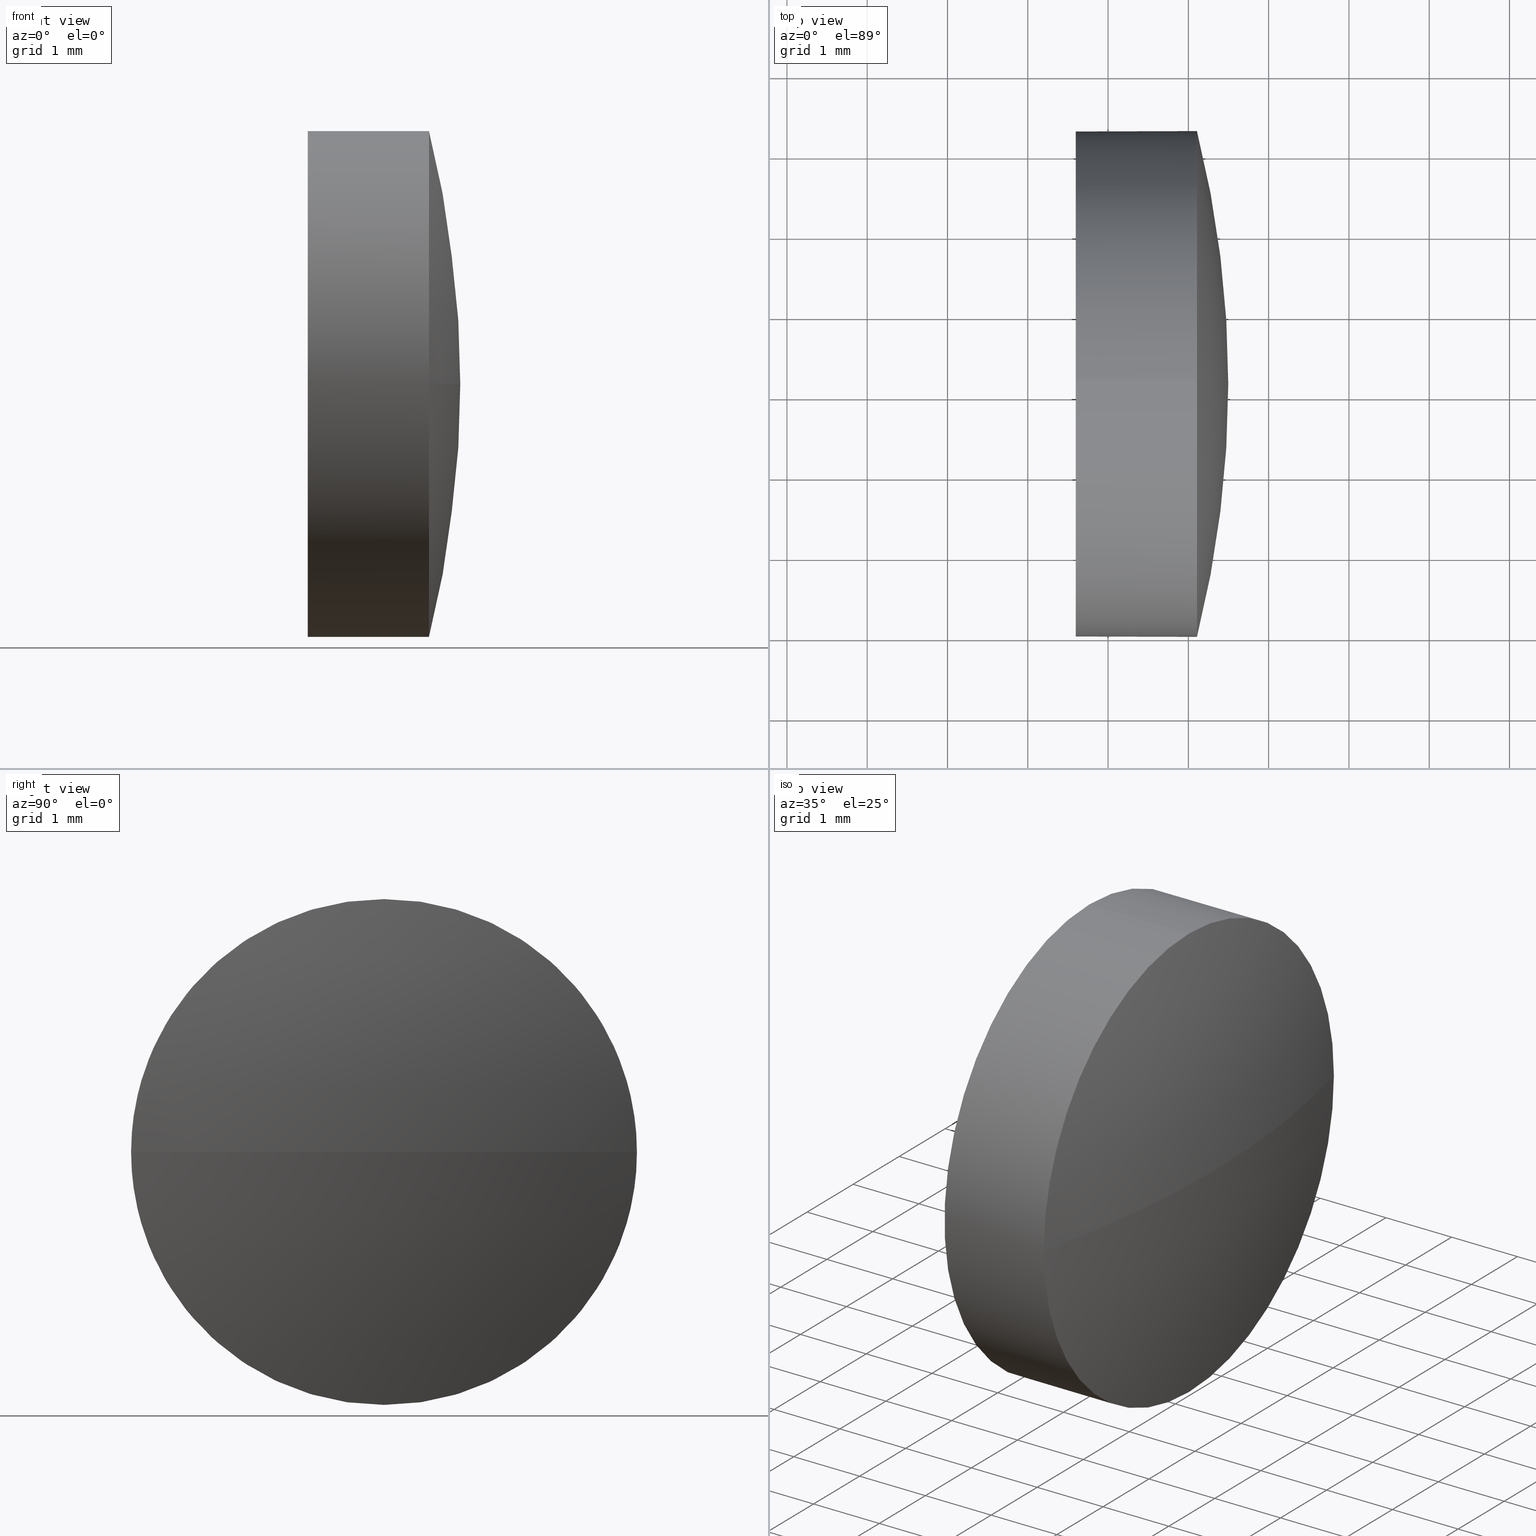
[diagram: canonical four-view strip — front | top / right | iso, engineering-drawing reading convention]
A machine part, canonical four-view strip (front | top / right | iso — engineering-drawing reading convention). The complete STEP part file that produces these views, byte-faithful:
ISO-10303-21;
HEADER;
FILE_DESCRIPTION (( 'STEP AP214' ),
    '1' );
FILE_NAME ('100011.STEP',
    '2019-04-19T06:27:19',
    ( '' ),
    ( '' ),
    'SwSTEP 2.0',
    'SolidWorks 2016',
    '' );
FILE_SCHEMA (( 'AUTOMOTIVE_DESIGN' ));
ENDSEC;

DATA;
#1 = CARTESIAN_POINT ( 'NONE',  ( 622.5808961781638100, 229.1405012617116500, 0.0000000000000000000 ) ) ;
#2 = ORIENTED_EDGE ( 'NONE', *, *, #12, .F. ) ;
#3 = DIRECTION ( 'NONE',  ( 0.0000000000000000000, 0.0000000000000000000, 1.000000000000000000 ) ) ;
#4 = DIRECTION ( 'NONE',  ( -0.0000000000000000000, 0.0000000000000000000, -1.000000000000000000 ) ) ;
#5 = CARTESIAN_POINT ( 'NONE',  ( 611.6004701883784900, 229.1405012617116200, 0.0000000000000000000 ) ) ;
#6 = DIRECTION ( 'NONE',  ( 0.0000000000000000000, 0.0000000000000000000, 1.000000000000000000 ) ) ;
#7 = ORIENTED_EDGE ( 'NONE', *, *, #12, .T. ) ;
#8 =( NAMED_UNIT ( * ) PLANE_ANGLE_UNIT ( ) SI_UNIT ( $, .RADIAN. ) );
#9 = ADVANCED_FACE ( 'NONE', ( #143 ), #26, .T. ) ;
#10 = CIRCLE ( 'NONE', #183, 3.149999999999986100 ) ;
#11 = ORIENTED_EDGE ( 'NONE', *, *, #166, .F. ) ;
#12 = EDGE_CURVE ( 'NONE', #146, #70, #60, .T. ) ;
#13 = PRODUCT_RELATED_PRODUCT_CATEGORY ( 'part', '', ( #117 ) ) ;
#14 =( LENGTH_UNIT ( ) NAMED_UNIT ( * ) SI_UNIT ( .MILLI., .METRE. ) );
#15 = PRODUCT_DEFINITION_CONTEXT ( 'detailed design', #158, 'design' ) ;
#16 = DIRECTION ( 'NONE',  ( 0.0000000000000000000, 0.0000000000000000000, 1.000000000000000000 ) ) ;
#17 = EDGE_CURVE ( 'NONE', #58, #70, #94, .T. ) ;
#18 = DIRECTION ( 'NONE',  ( -1.000000000000000000, -0.0000000000000000000, -0.0000000000000000000 ) ) ;
#19 = PRODUCT_DEFINITION_FORMATION_WITH_SPECIFIED_SOURCE ( '�κ�', '', #117, .NOT_KNOWN. ) ;
#20 = CARTESIAN_POINT ( 'NONE',  ( 635.1070500243175700, 229.1405012617116200, 0.0000000000000000000 ) ) ;
#21 = APPLICATION_PROTOCOL_DEFINITION ( 'draft international standard', 'automotive_design', 1998, #158 ) ;
#22 = SURFACE_STYLE_FILL_AREA ( #78 ) ;
#23 = UNCERTAINTY_MEASURE_WITH_UNIT (LENGTH_MEASURE( 1.000000000000000100E-005 ), #42, 'distance_accuracy_value', 'NONE');
#24 = LINE ( 'NONE', #41, #126 ) ;
#25 = AXIS2_PLACEMENT_3D ( 'NONE', #5, #90, #106 ) ;
#26 = SPHERICAL_SURFACE ( 'NONE', #99, 12.91615384615374000 ) ;
#27 = CLOSED_SHELL ( 'NONE', ( #169, #114, #9, #185, #127 ) ) ;
#28 = DIRECTION ( 'NONE',  ( 0.0000000000000000000, 0.0000000000000000000, 1.000000000000000000 ) ) ;
#29 = SURFACE_SIDE_STYLE ('',( #83 ) ) ;
#30 = PLANE ( 'NONE',  #54 ) ;
#31 = CARTESIAN_POINT ( 'NONE',  ( 622.5808961781638100, 229.1405012617116500, 0.0000000000000000000 ) ) ;
#32 = CARTESIAN_POINT ( 'NONE',  ( 633.5970500243175800, 229.1405012617116200, 0.0000000000000000000 ) ) ;
#33 = PRODUCT_DEFINITION ( 'δ֪', '', #19, #15 ) ;
#34 = STYLED_ITEM ( 'NONE', ( #165 ), #73 ) ;
#35 = EDGE_LOOP ( 'NONE', ( #129, #107, #52, #160, #7 ) ) ;
#36 =( GEOMETRIC_REPRESENTATION_CONTEXT ( 3 ) GLOBAL_UNCERTAINTY_ASSIGNED_CONTEXT ( ( #151 ) ) GLOBAL_UNIT_ASSIGNED_CONTEXT ( ( #14, #39, #137 ) ) REPRESENTATION_CONTEXT ( 'NONE', 'WORKASPACE' ) );
#37 = SURFACE_STYLE_USAGE ( .BOTH. , #29 ) ;
#38 = CARTESIAN_POINT ( 'NONE',  ( 635.1070500243175700, 229.1405012617116200, -3.149999999999986100 ) ) ;
#39 =( NAMED_UNIT ( * ) PLANE_ANGLE_UNIT ( ) SI_UNIT ( $, .RADIAN. ) );
#40 = EDGE_CURVE ( 'NONE', #104, #64, #92, .T. ) ;
#41 = CARTESIAN_POINT ( 'NONE',  ( 611.6004701883784900, 229.1405012617116200, 3.149999999999986100 ) ) ;
#42 =( LENGTH_UNIT ( ) NAMED_UNIT ( * ) SI_UNIT ( .MILLI., .METRE. ) );
#43 = DIRECTION ( 'NONE',  ( 0.0000000000000000000, 0.0000000000000000000, 1.000000000000000000 ) ) ;
#44 = ORIENTED_EDGE ( 'NONE', *, *, #81, .F. ) ;
#45 = CARTESIAN_POINT ( 'NONE',  ( 0.0000000000000000000, 0.0000000000000000000, 0.0000000000000000000 ) ) ;
#46 = VERTEX_POINT ( 'NONE', #174 ) ;
#47 = UNCERTAINTY_MEASURE_WITH_UNIT (LENGTH_MEASURE( 1.000000000000000100E-005 ), #125, 'distance_accuracy_value', 'NONE');
#48 = CARTESIAN_POINT ( 'NONE',  ( 633.5970500243175800, 229.1405012617116200, 0.0000000000000000000 ) ) ;
#49 = COLOUR_RGB ( '',1.000000000000000000, 1.000000000000000000, 1.000000000000000000 ) ;
#50 = CARTESIAN_POINT ( 'NONE',  ( 622.5808961781638100, 229.1405012617116500, 0.0000000000000000000 ) ) ;
#51 = CARTESIAN_POINT ( 'NONE',  ( 635.1070500243175700, 229.1405012617116200, 3.149999999999986100 ) ) ;
#52 = ORIENTED_EDGE ( 'NONE', *, *, #97, .F. ) ;
#53 = DIRECTION ( 'NONE',  ( 0.0000000000000000000, 1.224646799147353200E-016, -1.000000000000000000 ) ) ;
#54 = AXIS2_PLACEMENT_3D ( 'NONE', #48, #135, #156 ) ;
#55 = ORIENTED_EDGE ( 'NONE', *, *, #17, .F. ) ;
#56 = CYLINDRICAL_SURFACE ( 'NONE', #134, 3.149999999999986100 ) ;
#57 = EDGE_LOOP ( 'NONE', ( #98, #85 ) ) ;
#58 = VERTEX_POINT ( 'NONE', #62 ) ;
#59 = ORIENTED_EDGE ( 'NONE', *, *, #130, .F. ) ;
#60 = CIRCLE ( 'NONE', #91, 3.149999999999986100 ) ;
#61 = DIRECTION ( 'NONE',  ( 0.0000000000000000000, 1.000000000000000000, 0.0000000000000000000 ) ) ;
#62 = CARTESIAN_POINT ( 'NONE',  ( 635.4970500243175600, 229.1405012617116500, 0.0000000000000000000 ) ) ;
#63 = EDGE_CURVE ( 'NONE', #146, #182, #24, .T. ) ;
#64 = VERTEX_POINT ( 'NONE', #155 ) ;
#65 = APPLICATION_PROTOCOL_DEFINITION ( 'draft international standard', 'automotive_design', 1998, #93 ) ;
#66 = ORIENTED_EDGE ( 'NONE', *, *, #81, .T. ) ;
#67 = CYLINDRICAL_SURFACE ( 'NONE', #25, 3.149999999999986100 ) ;
#68 = EDGE_LOOP ( 'NONE', ( #55, #168, #139, #180 ) ) ;
#69 = EDGE_CURVE ( 'NONE', #70, #104, #184, .T. ) ;
#70 = VERTEX_POINT ( 'NONE', #131 ) ;
#71 = DIRECTION ( 'NONE',  ( -1.000000000000000000, -0.0000000000000000000, -0.0000000000000000000 ) ) ;
#72 = DIRECTION ( 'NONE',  ( -0.0000000000000000000, 0.0000000000000000000, 1.000000000000000000 ) ) ;
#73 = MANIFOLD_SOLID_BREP ( '��ת1', #27 ) ;
#74 = FACE_OUTER_BOUND ( 'NONE', #57, .T. ) ;
#75 = FILL_AREA_STYLE_COLOUR ( '', #49 ) ;
#76 = SURFACE_STYLE_USAGE ( .BOTH. , #161 ) ;
#77 = AXIS2_PLACEMENT_3D ( 'NONE', #32, #120, #119 ) ;
#78 = FILL_AREA_STYLE ('',( #75 ) ) ;
#79 = FACE_OUTER_BOUND ( 'NONE', #115, .T. ) ;
#80 =( NAMED_UNIT ( * ) SI_UNIT ( $, .STERADIAN. ) SOLID_ANGLE_UNIT ( ) );
#81 = EDGE_CURVE ( 'NONE', #46, #146, #111, .T. ) ;
#82 = ORIENTED_EDGE ( 'NONE', *, *, #162, .T. ) ;
#83 = SURFACE_STYLE_FILL_AREA ( #136 ) ;
#84 = AXIS2_PLACEMENT_3D ( 'NONE', #20, #108, #123 ) ;
#85 = ORIENTED_EDGE ( 'NONE', *, *, #130, .T. ) ;
#86 = CARTESIAN_POINT ( 'NONE',  ( 611.6004701883784900, 229.1405012617116200, -3.149999999999986100 ) ) ;
#87 = CARTESIAN_POINT ( 'NONE',  ( 635.1070500243175700, 229.1405012617116200, 0.0000000000000000000 ) ) ;
#88 = PRESENTATION_LAYER_ASSIGNMENT (  '', '', ( #164 ) ) ;
#89 = DIRECTION ( 'NONE',  ( 1.000000000000000000, 0.0000000000000000000, 0.0000000000000000000 ) ) ;
#90 = DIRECTION ( 'NONE',  ( -1.000000000000000000, -0.0000000000000000000, -0.0000000000000000000 ) ) ;
#91 = AXIS2_PLACEMENT_3D ( 'NONE', #87, #105, #3 ) ;
#92 = LINE ( 'NONE', #86, #177 ) ;
#93 = APPLICATION_CONTEXT ( 'automotive_design' ) ;
#94 = CIRCLE ( 'NONE', #148, 12.91615384615374400 ) ;
#95 = DIRECTION ( 'NONE',  ( 1.000000000000000000, 0.0000000000000000000, 0.0000000000000000000 ) ) ;
#96 = CARTESIAN_POINT ( 'NONE',  ( 622.5808961781638100, 229.1405012617116500, 0.0000000000000000000 ) ) ;
#97 = EDGE_CURVE ( 'NONE', #182, #64, #145, .T. ) ;
#98 = ORIENTED_EDGE ( 'NONE', *, *, #97, .T. ) ;
#99 = AXIS2_PLACEMENT_3D ( 'NONE', #1, #172, #171 ) ;
#100 = ADVANCED_BREP_SHAPE_REPRESENTATION ( '100011', ( #73, #144 ), #170 ) ;
#101 = DIRECTION ( 'NONE',  ( -1.000000000000000000, -0.0000000000000000000, -0.0000000000000000000 ) ) ;
#102 = COLOUR_RGB ( '',1.000000000000000000, 1.000000000000000000, 1.000000000000000000 ) ;
#103 = DIRECTION ( 'NONE',  ( -1.000000000000000000, -0.0000000000000000000, -0.0000000000000000000 ) ) ;
#104 = VERTEX_POINT ( 'NONE', #38 ) ;
#105 = DIRECTION ( 'NONE',  ( -1.000000000000000000, -0.0000000000000000000, -0.0000000000000000000 ) ) ;
#106 = DIRECTION ( 'NONE',  ( 0.0000000000000000000, 0.0000000000000000000, 1.000000000000000000 ) ) ;
#107 = ORIENTED_EDGE ( 'NONE', *, *, #40, .T. ) ;
#108 = DIRECTION ( 'NONE',  ( -1.000000000000000000, -0.0000000000000000000, -0.0000000000000000000 ) ) ;
#109 = AXIS2_PLACEMENT_3D ( 'NONE', #96, #53, #179 ) ;
#110 =( NAMED_UNIT ( * ) PLANE_ANGLE_UNIT ( ) SI_UNIT ( $, .RADIAN. ) );
#111 = CIRCLE ( 'NONE', #116, 3.149999999999986100 ) ;
#112 = MECHANICAL_DESIGN_GEOMETRIC_PRESENTATION_REPRESENTATION (  '', ( #164 ), #178 ) ;
#113 = AXIS2_PLACEMENT_3D ( 'NONE', #140, #101, #28 ) ;
#114 = ADVANCED_FACE ( 'NONE', ( #118 ), #159, .T. ) ;
#115 = EDGE_LOOP ( 'NONE', ( #132, #82, #66, #153, #59 ) ) ;
#116 = AXIS2_PLACEMENT_3D ( 'NONE', #154, #18, #16 ) ;
#117 = PRODUCT ( '100011', '100011', '', ( #141 ) ) ;
#118 = FACE_OUTER_BOUND ( 'NONE', #68, .T. ) ;
#119 = DIRECTION ( 'NONE',  ( 0.0000000000000000000, 0.0000000000000000000, 1.000000000000000000 ) ) ;
#120 = DIRECTION ( 'NONE',  ( -1.000000000000000000, -0.0000000000000000000, -0.0000000000000000000 ) ) ;
#121 = CARTESIAN_POINT ( 'NONE',  ( 611.6004701883784900, 229.1405012617116200, 0.0000000000000000000 ) ) ;
#122 = AXIS2_PLACEMENT_3D ( 'NONE', #50, #4, #61 ) ;
#123 = DIRECTION ( 'NONE',  ( 0.0000000000000000000, 0.0000000000000000000, 1.000000000000000000 ) ) ;
#124 = DIRECTION ( 'NONE',  ( -1.000000000000000000, -0.0000000000000000000, -0.0000000000000000000 ) ) ;
#125 =( LENGTH_UNIT ( ) NAMED_UNIT ( * ) SI_UNIT ( .MILLI., .METRE. ) );
#126 = VECTOR ( 'NONE', #133, 1000.000000000000000 ) ;
#127 = ADVANCED_FACE ( 'NONE', ( #74 ), #30, .F. ) ;
#128 = PRODUCT_DEFINITION_SHAPE ( 'NONE', 'NONE',  #33 ) ;
#129 = ORIENTED_EDGE ( 'NONE', *, *, #69, .T. ) ;
#130 = EDGE_CURVE ( 'NONE', #64, #182, #10, .T. ) ;
#131 = CARTESIAN_POINT ( 'NONE',  ( 635.1070500243175700, 232.2905012617116300, 0.0000000000000000000 ) ) ;
#132 = ORIENTED_EDGE ( 'NONE', *, *, #40, .F. ) ;
#133 = DIRECTION ( 'NONE',  ( -1.000000000000000000, -0.0000000000000000000, -0.0000000000000000000 ) ) ;
#134 = AXIS2_PLACEMENT_3D ( 'NONE', #121, #124, #43 ) ;
#135 = DIRECTION ( 'NONE',  ( 1.000000000000000000, 0.0000000000000000000, 0.0000000000000000000 ) ) ;
#136 = FILL_AREA_STYLE ('',( #152 ) ) ;
#137 =( NAMED_UNIT ( * ) SI_UNIT ( $, .STERADIAN. ) SOLID_ANGLE_UNIT ( ) );
#138 = SHAPE_DEFINITION_REPRESENTATION ( #128, #100 ) ;
#139 = ORIENTED_EDGE ( 'NONE', *, *, #162, .F. ) ;
#140 = CARTESIAN_POINT ( 'NONE',  ( 635.1070500243175700, 229.1405012617116200, 0.0000000000000000000 ) ) ;
#141 = PRODUCT_CONTEXT ( 'NONE', #93, 'mechanical' ) ;
#142 =( NAMED_UNIT ( * ) SI_UNIT ( $, .STERADIAN. ) SOLID_ANGLE_UNIT ( ) );
#143 = FACE_OUTER_BOUND ( 'NONE', #150, .T. ) ;
#144 = AXIS2_PLACEMENT_3D ( 'NONE', #45, #6, #95 ) ;
#145 = CIRCLE ( 'NONE', #77, 3.149999999999986100 ) ;
#146 = VERTEX_POINT ( 'NONE', #51 ) ;
#147 = PRESENTATION_LAYER_ASSIGNMENT (  '', '', ( #34 ) ) ;
#148 = AXIS2_PLACEMENT_3D ( 'NONE', #31, #72, #89 ) ;
#149 = ORIENTED_EDGE ( 'NONE', *, *, #17, .T. ) ;
#150 = EDGE_LOOP ( 'NONE', ( #11, #149, #2, #44 ) ) ;
#151 = UNCERTAINTY_MEASURE_WITH_UNIT (LENGTH_MEASURE( 1.000000000000000100E-005 ), #14, 'distance_accuracy_value', 'NONE');
#152 = FILL_AREA_STYLE_COLOUR ( '', #102 ) ;
#153 = ORIENTED_EDGE ( 'NONE', *, *, #63, .T. ) ;
#154 = CARTESIAN_POINT ( 'NONE',  ( 635.1070500243175700, 229.1405012617116200, 0.0000000000000000000 ) ) ;
#155 = CARTESIAN_POINT ( 'NONE',  ( 633.5970500243175800, 229.1405012617116200, -3.149999999999986100 ) ) ;
#156 = DIRECTION ( 'NONE',  ( 0.0000000000000000000, 0.0000000000000000000, -1.000000000000000000 ) ) ;
#157 = MECHANICAL_DESIGN_GEOMETRIC_PRESENTATION_REPRESENTATION (  '', ( #34 ), #36 ) ;
#158 = APPLICATION_CONTEXT ( 'automotive_design' ) ;
#159 = SPHERICAL_SURFACE ( 'NONE', #122, 12.91615384615374000 ) ;
#160 = ORIENTED_EDGE ( 'NONE', *, *, #63, .F. ) ;
#161 = SURFACE_SIDE_STYLE ('',( #22 ) ) ;
#162 = EDGE_CURVE ( 'NONE', #104, #46, #173, .T. ) ;
#163 = CARTESIAN_POINT ( 'NONE',  ( 633.5970500243175800, 229.1405012617116200, 3.149999999999986100 ) ) ;
#164 = STYLED_ITEM ( 'NONE', ( #181 ), #100 ) ;
#165 = PRESENTATION_STYLE_ASSIGNMENT (( #37 ) ) ;
#166 = EDGE_CURVE ( 'NONE', #58, #46, #167, .T. ) ;
#167 = CIRCLE ( 'NONE', #109, 12.91615384615374400 ) ;
#168 = ORIENTED_EDGE ( 'NONE', *, *, #166, .T. ) ;
#169 = ADVANCED_FACE ( 'NONE', ( #186 ), #67, .T. ) ;
#170 =( GEOMETRIC_REPRESENTATION_CONTEXT ( 3 ) GLOBAL_UNCERTAINTY_ASSIGNED_CONTEXT ( ( #47 ) ) GLOBAL_UNIT_ASSIGNED_CONTEXT ( ( #125, #110, #80 ) ) REPRESENTATION_CONTEXT ( 'NONE', 'WORKASPACE' ) );
#171 = DIRECTION ( 'NONE',  ( 0.0000000000000000000, 1.000000000000000000, 0.0000000000000000000 ) ) ;
#172 = DIRECTION ( 'NONE',  ( -0.0000000000000000000, 0.0000000000000000000, -1.000000000000000000 ) ) ;
#173 = CIRCLE ( 'NONE', #84, 3.149999999999986100 ) ;
#174 = CARTESIAN_POINT ( 'NONE',  ( 635.1070500243175700, 225.9905012617116700, -3.857637417314171600E-016 ) ) ;
#175 = CARTESIAN_POINT ( 'NONE',  ( 633.5970500243175800, 229.1405012617116200, 0.0000000000000000000 ) ) ;
#176 = DIRECTION ( 'NONE',  ( 0.0000000000000000000, 0.0000000000000000000, 1.000000000000000000 ) ) ;
#177 = VECTOR ( 'NONE', #103, 1000.000000000000000 ) ;
#178 =( GEOMETRIC_REPRESENTATION_CONTEXT ( 3 ) GLOBAL_UNCERTAINTY_ASSIGNED_CONTEXT ( ( #23 ) ) GLOBAL_UNIT_ASSIGNED_CONTEXT ( ( #42, #8, #142 ) ) REPRESENTATION_CONTEXT ( 'NONE', 'WORKASPACE' ) );
#179 = DIRECTION ( 'NONE',  ( 0.0000000000000000000, 1.000000000000000000, 1.224646799147352700E-016 ) ) ;
#180 = ORIENTED_EDGE ( 'NONE', *, *, #69, .F. ) ;
#181 = PRESENTATION_STYLE_ASSIGNMENT (( #76 ) ) ;
#182 = VERTEX_POINT ( 'NONE', #163 ) ;
#183 = AXIS2_PLACEMENT_3D ( 'NONE', #175, #71, #176 ) ;
#184 = CIRCLE ( 'NONE', #113, 3.149999999999986100 ) ;
#185 = ADVANCED_FACE ( 'NONE', ( #79 ), #56, .T. ) ;
#186 = FACE_OUTER_BOUND ( 'NONE', #35, .T. ) ;
ENDSEC;
END-ISO-10303-21;
